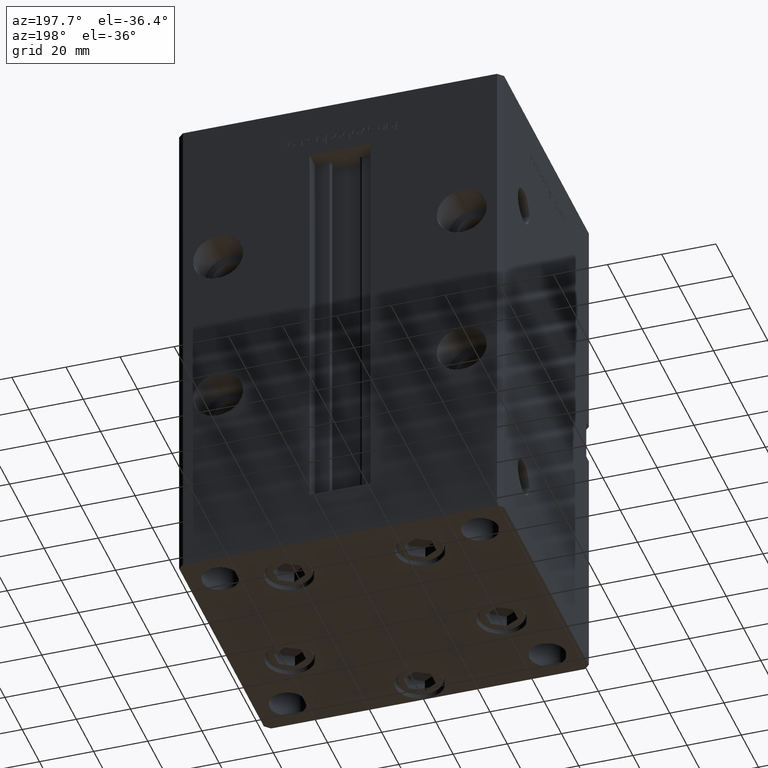
[diagram: clean part render]
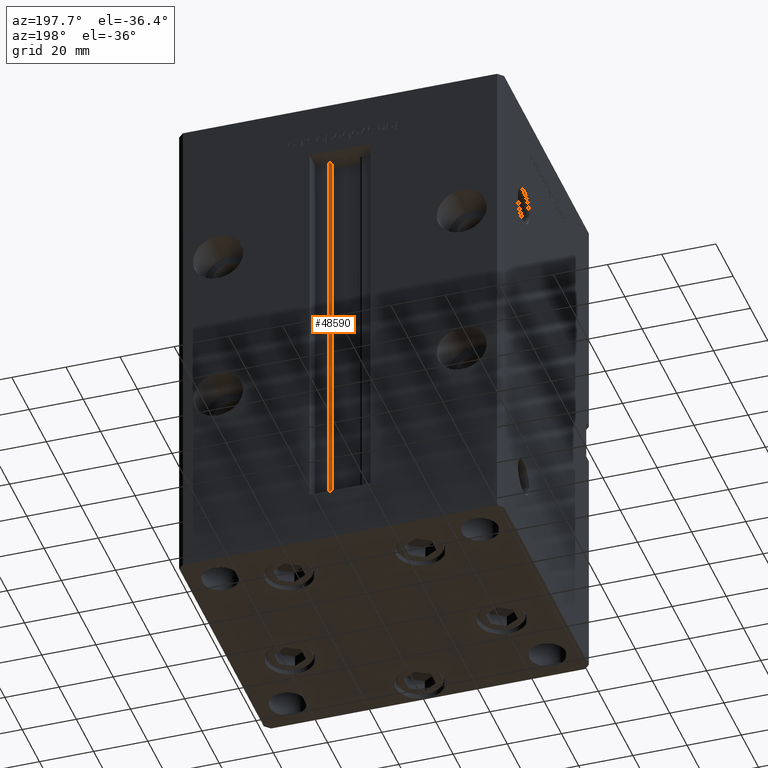
[diagram: same view with one face highlighted and labeled with its STEP entity id]
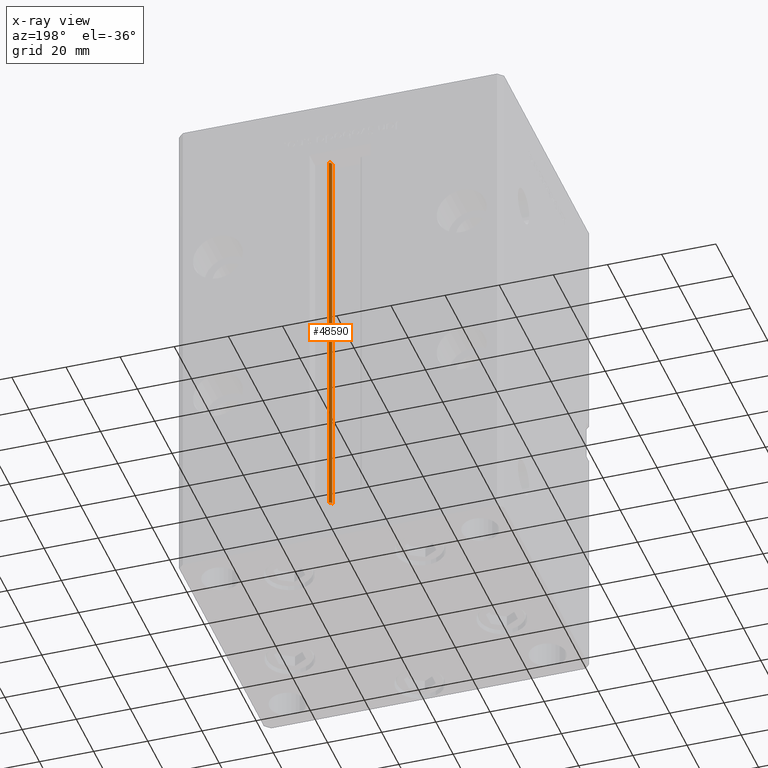
[diagram: x-ray of the same camera — body ghosted, the highlighted face saturated]
A machine part, auxiliary view. The second image highlights one B-rep face of the part: STEP entity #48590.
The next image is the same camera in x-ray: the body ghosted, the highlighted face saturated — about 0% of this face is hidden behind the body in this view.
In plain terms, the highlighted cylindrical surface (edge-blend (fillet) strip) has radius 0.9333 mm, axis along (0, 0, 1).
Its self-contained STEP definition (entity closure, byte-faithful):
#96 = CARTESIAN_POINT ( 'NONE',  ( 5.375042956467945388, 43.09999999999899956, 0.000000000000000000 ) ) ;
#541 = DIRECTION ( 'NONE',  ( 0.000000000000000000, 0.000000000000000000, -1.000000000000000000 ) ) ;
#1324 = CARTESIAN_POINT ( 'NONE',  ( 6.183333333333997928, 44.50000000000000711, 0.000000000000000000 ) ) ;
#1506 = FACE_OUTER_BOUND ( 'NONE', #3685, .T. ) ;
#2713 = AXIS2_PLACEMENT_3D ( 'NONE', #41304, #37007, #4525 ) ;
#3685 = EDGE_LOOP ( 'NONE', ( #41751, #52916, #45385, #7941 ) ) ;
#4525 = DIRECTION ( 'NONE',  ( 1.000000000000000000, 0.000000000000000000, 0.000000000000000000 ) ) ;
#5887 = VECTOR ( 'NONE', #48017, 1000.000000000000000 ) ;
#7941 = ORIENTED_EDGE ( 'NONE', *, *, #32665, .T. ) ;
#9332 = CARTESIAN_POINT ( 'NONE',  ( 5.375042956467942723, 43.09999999999899956, 148.5000000000000000 ) ) ;
#9963 = EDGE_CURVE ( 'NONE', #13878, #14186, #13390, .T. ) ;
#13390 = LINE ( 'NONE', #1324, #19243 ) ;
#13878 = VERTEX_POINT ( 'NONE', #36415 ) ;
#14186 = VERTEX_POINT ( 'NONE', #44870 ) ;
#14637 = DIRECTION ( 'NONE',  ( 1.000000000000000000, 0.000000000000000000, 0.000000000000000000 ) ) ;
#17289 = EDGE_CURVE ( 'NONE', #18911, #13878, #37011, .T. ) ;
#17456 = VERTEX_POINT ( 'NONE', #9332 ) ;
#18415 = CIRCLE ( 'NONE', #25253, 0.9333333333340008142 ) ;
#18911 = VERTEX_POINT ( 'NONE', #96 ) ;
#19243 = VECTOR ( 'NONE', #37027, 1000.000000000000000 ) ;
#25253 = AXIS2_PLACEMENT_3D ( 'NONE', #45105, #541, #46152 ) ;
#27581 = CARTESIAN_POINT ( 'NONE',  ( 5.375042956467945388, 43.09999999999899956, 0.000000000000000000 ) ) ;
#32665 = EDGE_CURVE ( 'NONE', #17456, #14186, #18415, .T. ) ;
#35052 = CARTESIAN_POINT ( 'NONE',  ( 6.183333333333997928, 43.56666666666600207, 0.000000000000000000 ) ) ;
#36415 = CARTESIAN_POINT ( 'NONE',  ( 6.183333333333997928, 44.50000000000000711, 0.000000000000000000 ) ) ;
#37007 = DIRECTION ( 'NONE',  ( -0.000000000000000000, -0.000000000000000000, -1.000000000000000000 ) ) ;
#37011 = CIRCLE ( 'NONE', #2713, 0.9333333333340008142 ) ;
#37027 = DIRECTION ( 'NONE',  ( -0.000000000000000000, -0.000000000000000000, 1.000000000000000000 ) ) ;
#39482 = AXIS2_PLACEMENT_3D ( 'NONE', #35052, #50627, #14637 ) ;
#41304 = CARTESIAN_POINT ( 'NONE',  ( 6.183333333333997928, 43.56666666666600207, 0.000000000000000000 ) ) ;
#41751 = ORIENTED_EDGE ( 'NONE', *, *, #9963, .F. ) ;
#42572 = CYLINDRICAL_SURFACE ( 'NONE', #39482, 0.9333333333340008142 ) ;
#42778 = EDGE_CURVE ( 'NONE', #18911, #17456, #52834, .T. ) ;
#44870 = CARTESIAN_POINT ( 'NONE',  ( 6.183333333333997928, 44.50000000000000711, 148.5000000000000000 ) ) ;
#45105 = CARTESIAN_POINT ( 'NONE',  ( 6.183333333333997928, 43.56666666666600207, 148.5000000000000000 ) ) ;
#45385 = ORIENTED_EDGE ( 'NONE', *, *, #42778, .T. ) ;
#46152 = DIRECTION ( 'NONE',  ( 1.000000000000000000, 0.000000000000000000, 0.000000000000000000 ) ) ;
#48017 = DIRECTION ( 'NONE',  ( -0.000000000000000000, -0.000000000000000000, 1.000000000000000000 ) ) ;
#48590 = ADVANCED_FACE ( 'NONE', ( #1506 ), #42572, .T. ) ;
#50627 = DIRECTION ( 'NONE',  ( -0.000000000000000000, -0.000000000000000000, 1.000000000000000000 ) ) ;
#52834 = LINE ( 'NONE', #27581, #5887 ) ;
#52916 = ORIENTED_EDGE ( 'NONE', *, *, #17289, .F. ) ;